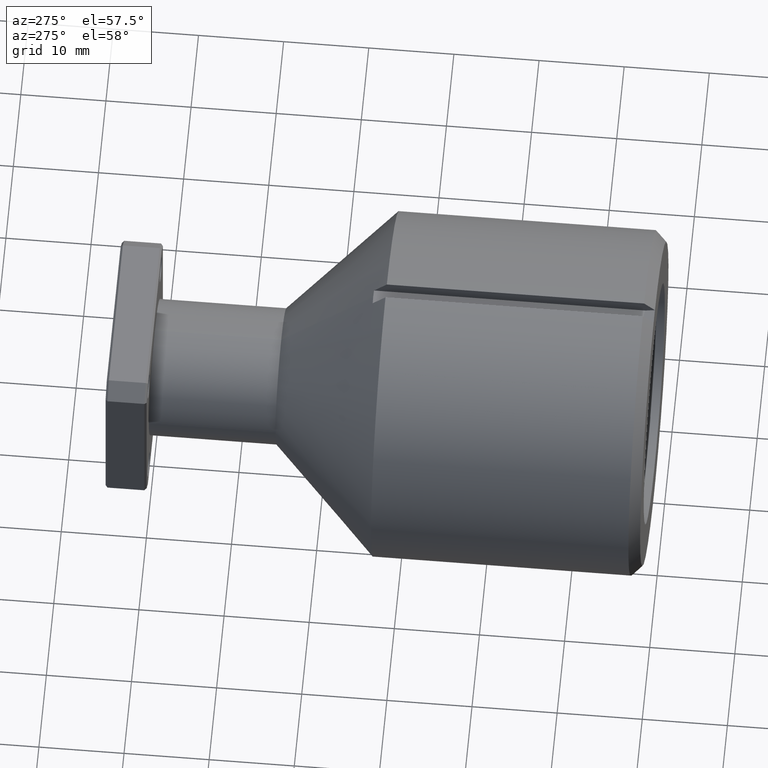
[diagram: clean part render]
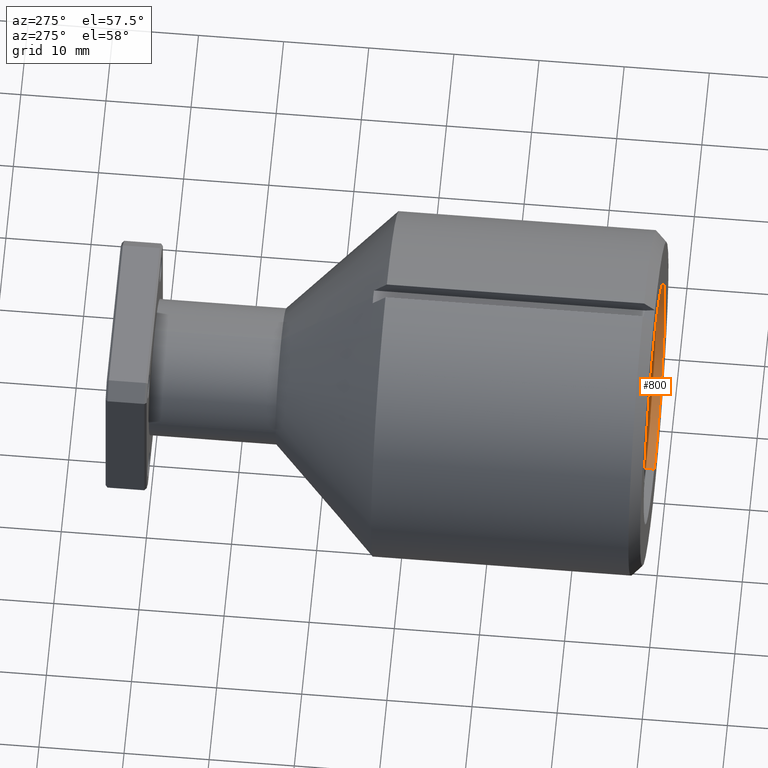
[diagram: same view with one face highlighted and labeled with its STEP entity id]
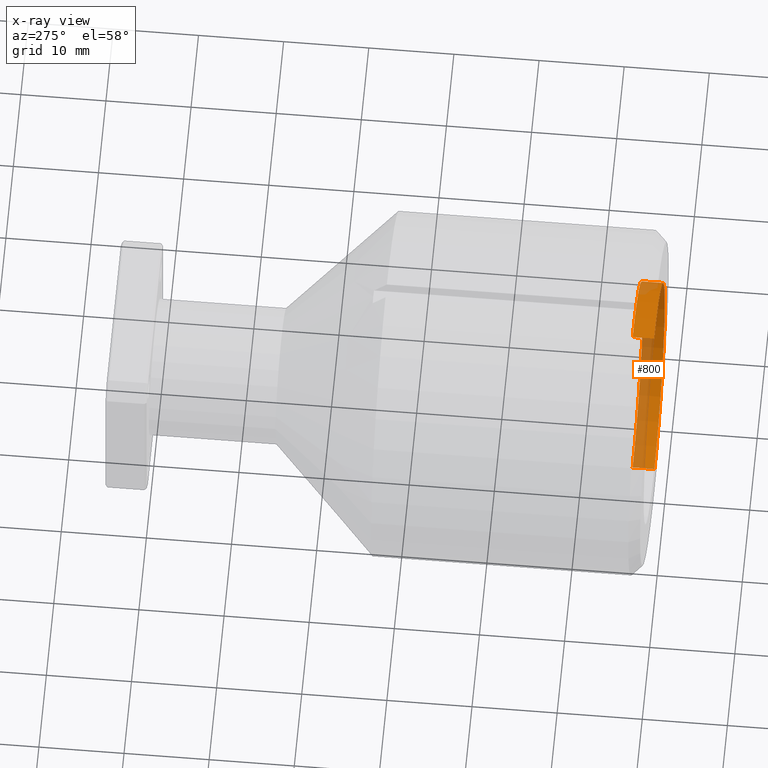
[diagram: x-ray of the same camera — body ghosted, the highlighted face saturated]
A machine part, auxiliary view. The second image highlights one B-rep face of the part: STEP entity #800.
The next image is the same camera in x-ray: the body ghosted, the highlighted face saturated — about 36% of this face is hidden behind the body in this view.
In plain terms, the highlighted cylindrical surface (partial cylindrical patch) has radius 14.1862 mm, axis along (-0, -1, -0).
Its self-contained STEP definition (entity closure, byte-faithful):
#6 = VERTEX_POINT ( 'NONE', #17 ) ;
#17 = CARTESIAN_POINT ( 'NONE',  ( 6.839774837917879664E-17, -1.033357296908698819, 2.378506395338603863 ) ) ;
#40 = DIRECTION ( 'NONE',  ( -0.000000000000000000, -1.000000000000000000, -0.000000000000000000 ) ) ;
#43 = DIRECTION ( 'NONE',  ( 0.000000000000000000, 0.000000000000000000, -1.000000000000000000 ) ) ;
#74 = EDGE_CURVE ( 'NONE', #1497, #1557, #1198, .T. ) ;
#96 = CARTESIAN_POINT ( 'NONE',  ( 0.000000000000000000, -1.033357296908698819, 1.261486395338603739 ) ) ;
#275 = ORIENTED_EDGE ( 'NONE', *, *, #74, .T. ) ;
#338 = ORIENTED_EDGE ( 'NONE', *, *, #1067, .F. ) ;
#346 = CARTESIAN_POINT ( 'NONE',  ( 0.000000000000000000, -1.133357296908698908, 1.261486395338603739 ) ) ;
#358 = DIRECTION ( 'NONE',  ( 0.000000000000000000, -1.000000000000000000, 0.000000000000000000 ) ) ;
#392 = DIRECTION ( 'NONE',  ( -0.000000000000000000, -1.000000000000000000, -0.000000000000000000 ) ) ;
#409 = FACE_OUTER_BOUND ( 'NONE', #1533, .T. ) ;
#527 = ORIENTED_EDGE ( 'NONE', *, *, #1184, .F. ) ;
#579 = CARTESIAN_POINT ( 'NONE',  ( 0.000000000000000000, -1.133357296908698908, 1.819996395338603579 ) ) ;
#617 = CYLINDRICAL_SURFACE ( 'NONE', #1491, 0.5585099999999999509 ) ;
#633 = CARTESIAN_POINT ( 'NONE',  ( 0.000000000000000000, -1.033357296908698819, 1.819996395338603579 ) ) ;
#730 = DIRECTION ( 'NONE',  ( 0.000000000000000000, 0.000000000000000000, -1.000000000000000000 ) ) ;
#800 = ADVANCED_FACE ( 'NONE', ( #409 ), #617, .F. ) ;
#942 = DIRECTION ( 'NONE',  ( 0.000000000000000000, -1.000000000000000000, 0.000000000000000000 ) ) ;
#964 = CARTESIAN_POINT ( 'NONE',  ( 0.000000000000000000, -1.033357296908698819, 1.261486395338603739 ) ) ;
#1067 = EDGE_CURVE ( 'NONE', #6, #1468, #1069, .T. ) ;
#1069 = LINE ( 'NONE', #1160, #1546 ) ;
#1081 = CARTESIAN_POINT ( 'NONE',  ( 0.000000000000000000, -1.033357296908698819, 1.819996395338603579 ) ) ;
#1101 = ORIENTED_EDGE ( 'NONE', *, *, #1522, .T. ) ;
#1156 = AXIS2_PLACEMENT_3D ( 'NONE', #579, #942, #1450 ) ;
#1160 = CARTESIAN_POINT ( 'NONE',  ( 6.839774837917880897E-17, -1.033357296908698819, 2.378506395338603863 ) ) ;
#1179 = CIRCLE ( 'NONE', #1156, 0.5585099999999999509 ) ;
#1183 = AXIS2_PLACEMENT_3D ( 'NONE', #1081, #358, #730 ) ;
#1184 = EDGE_CURVE ( 'NONE', #1497, #6, #1206, .T. ) ;
#1198 = LINE ( 'NONE', #964, #1318 ) ;
#1206 = CIRCLE ( 'NONE', #1183, 0.5585099999999999509 ) ;
#1288 = CARTESIAN_POINT ( 'NONE',  ( 6.839774837917879664E-17, -1.133357296908698908, 2.378506395338603863 ) ) ;
#1290 = DIRECTION ( 'NONE',  ( -0.000000000000000000, -1.000000000000000000, -0.000000000000000000 ) ) ;
#1318 = VECTOR ( 'NONE', #40, 39.37007874015748143 ) ;
#1450 = DIRECTION ( 'NONE',  ( 0.000000000000000000, 0.000000000000000000, -1.000000000000000000 ) ) ;
#1468 = VERTEX_POINT ( 'NONE', #1288 ) ;
#1491 = AXIS2_PLACEMENT_3D ( 'NONE', #633, #392, #43 ) ;
#1497 = VERTEX_POINT ( 'NONE', #96 ) ;
#1522 = EDGE_CURVE ( 'NONE', #1557, #1468, #1179, .T. ) ;
#1533 = EDGE_LOOP ( 'NONE', ( #338, #527, #275, #1101 ) ) ;
#1546 = VECTOR ( 'NONE', #1290, 39.37007874015748143 ) ;
#1557 = VERTEX_POINT ( 'NONE', #346 ) ;